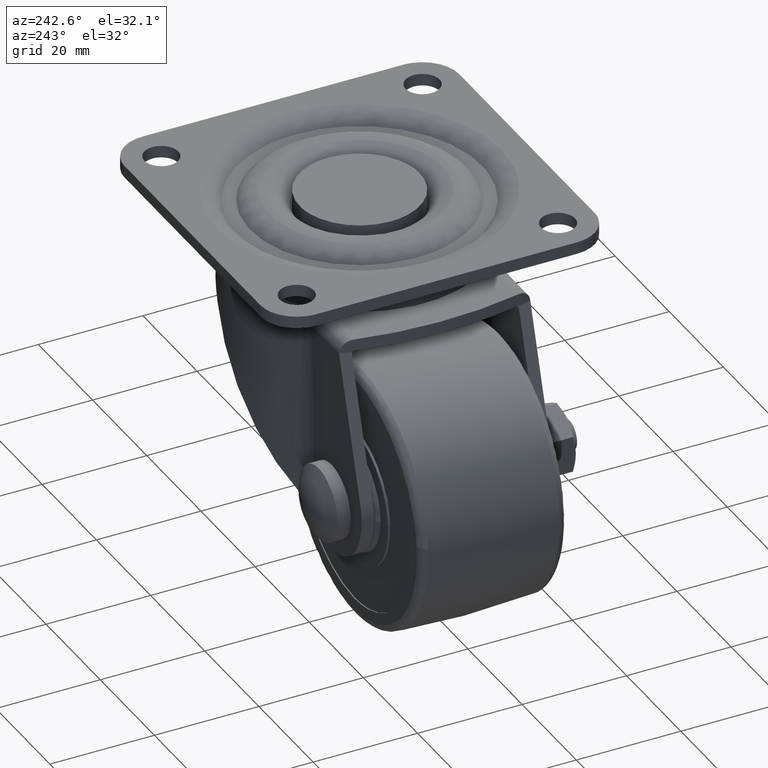
[diagram: clean part render]
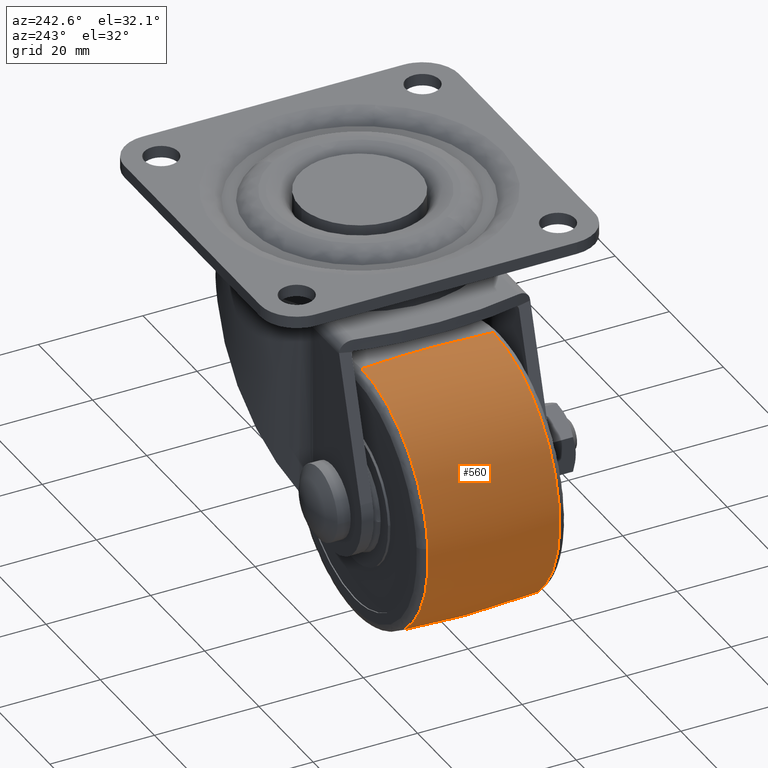
[diagram: same view with one face highlighted and labeled with its STEP entity id]
A machine part, auxiliary view. The second image highlights one B-rep face of the part: STEP entity #560.
In plain terms, the highlighted face is a freeform B-spline surface patch.
Its self-contained STEP definition (entity closure, byte-faithful):
#28=CARTESIAN_POINT('',(-49.571980243170607,-12.594463331568560,-44.236163722055117));
#29=VERTEX_POINT('',#28);
#30=CARTESIAN_POINT('',(-25.0,-12.594464770047679,-67.603054729019590));
#31=VERTEX_POINT('',#30);
#32=CARTESIAN_POINT('',(-49.571980243170614,-12.594463331568553,-44.236163722055124));
#33=CARTESIAN_POINT('',(-48.396441934166539,-12.594464802521561,-67.603054725162252));
#34=CARTESIAN_POINT('',(-25.0,-12.594464770047679,-67.603054729019590));
#42=(BOUNDED_CURVE()B_SPLINE_CURVE(2,(#32,#33,#34),.UNSPECIFIED.,.F.,.U.)B_SPLINE_CURVE_WITH_KNOTS((3,3),(0.758796049086961,1.0),.UNSPECIFIED.)CURVE()GEOMETRIC_REPRESENTATION_ITEM()RATIONAL_B_SPLINE_CURVE((0.980114736202029,0.717411993706232,1.0))REPRESENTATION_ITEM(''));
#43=EDGE_CURVE('',#29,#31,#42,.T.);
#148=CARTESIAN_POINT('',(-25.0,-12.594461604124231,-18.396945071218369));
#149=VERTEX_POINT('',#148);
#150=CARTESIAN_POINT('',(-25.0,-12.594461604124231,-18.396945071218369));
#151=CARTESIAN_POINT('',(-49.603055055624189,-12.594461635005484,-18.396945067550220));
#152=CARTESIAN_POINT('',(-49.603054978949807,-12.594463250441089,-42.999999892593500));
#153=CARTESIAN_POINT('',(-49.603054977022367,-12.594463291049973,-43.618472386193169));
#154=CARTESIAN_POINT('',(-49.571980243170614,-12.594463331568553,-44.236163722055124));
#162=(BOUNDED_CURVE()B_SPLINE_CURVE(2,(#150,#151,#152,#153,#154),.UNSPECIFIED.,.F.,.U.)B_SPLINE_CURVE_WITH_KNOTS((3,2,3),(0.500000000000000,0.750000000000000,0.758796049086961),.UNSPECIFIED.)CURVE()GEOMETRIC_REPRESENTATION_ITEM()RATIONAL_B_SPLINE_CURVE((1.0,0.707106781186548,1.0,0.989694787480316,0.980114736202029))REPRESENTATION_ITEM(''));
#163=EDGE_CURVE('',#149,#29,#162,.T.);
#436=CARTESIAN_POINT('',(-25.0,12.594464063943599,-67.603054773573049));
#437=VERTEX_POINT('',#436);
#438=CARTESIAN_POINT('',(-24.999999999999996,-12.594464770047670,-67.603054729019703));
#439=CARTESIAN_POINT('',(-25.000000000000004,-0.000000354457644,-68.397734643087702));
#440=CARTESIAN_POINT('',(-25.0,12.594464063943590,-67.603054773573149));
#448=(BOUNDED_CURVE()B_SPLINE_CURVE(2,(#438,#439,#440),.UNSPECIFIED.,.F.,.U.)B_SPLINE_CURVE_WITH_KNOTS((3,3),(0.438966742456626,0.561033254114762),.UNSPECIFIED.)CURVE()GEOMETRIC_REPRESENTATION_ITEM()RATIONAL_B_SPLINE_CURVE((0.938431264631589,0.936568735420726,0.938431264526959))REPRESENTATION_ITEM(''));
#449=EDGE_CURVE('',#31,#437,#448,.T.);
#466=CARTESIAN_POINT('',(-25.0,12.594464063865679,-18.396945226422019));
#467=VERTEX_POINT('',#466);
#483=CARTESIAN_POINT('',(-25.000000000000004,-12.594461604124227,-18.396945071218372));
#484=CARTESIAN_POINT('',(-25.000000000000004,0.000001234767210,-17.602265457193418));
#485=CARTESIAN_POINT('',(-24.999999999999996,12.594464063865679,-18.396945226421934));
#493=(BOUNDED_CURVE()B_SPLINE_CURVE(2,(#483,#484,#485),.UNSPECIFIED.,.F.,.U.)B_SPLINE_CURVE_WITH_KNOTS((3,3),(0.438966757829323,0.561033254114384),.UNSPECIFIED.)CURVE()GEOMETRIC_REPRESENTATION_ITEM()RATIONAL_B_SPLINE_CURVE((0.938431264162466,0.936568735655293,0.938431264526948))REPRESENTATION_ITEM(''));
#494=EDGE_CURVE('',#149,#467,#493,.T.);
#501=CARTESIAN_POINT('',(-25.0,-13.849766627691777,-18.480116368421854));
#502=CARTESIAN_POINT('',(-25.000000000000004,-5.311769E-014,-17.518728299472698));
#503=CARTESIAN_POINT('',(-25.0,13.849766627691670,-18.480116368421854));
#504=CARTESIAN_POINT('',(-49.519883631578161,-13.849766627691762,-18.480116368421847));
#505=CARTESIAN_POINT('',(-50.481271700527309,-4.158415E-014,-17.518728299472688));
#506=CARTESIAN_POINT('',(-49.519883631578161,13.849766627691679,-18.480116368421847));
#507=CARTESIAN_POINT('',(-49.519883631578161,-13.849766627691777,-43.0));
#508=CARTESIAN_POINT('',(-50.481271700527302,-5.311769E-014,-43.000000000000007));
#509=CARTESIAN_POINT('',(-49.519883631578161,13.849766627691670,-43.0));
#510=CARTESIAN_POINT('',(-49.519883631578161,-13.849766627691762,-67.519883631578139));
#511=CARTESIAN_POINT('',(-50.481271700527323,-4.158415E-014,-68.481271700527302));
#512=CARTESIAN_POINT('',(-49.519883631578161,13.849766627691679,-67.519883631578153));
#513=CARTESIAN_POINT('',(-25.0,-13.849766627691777,-67.519883631578139));
#514=CARTESIAN_POINT('',(-25.000000000000004,-5.311769E-014,-68.481271700527302));
#515=CARTESIAN_POINT('',(-25.0,13.849766627691670,-67.519883631578168));
#523=(BOUNDED_SURFACE()B_SPLINE_SURFACE(2,2,((#501,#504,#507,#510,#513),(#502,#505,#508,#511,#514),(#503,#506,#509,#512,#515)),.UNSPECIFIED.,.F.,.F.,.U.)B_SPLINE_SURFACE_WITH_KNOTS((3,3),(3,2,3),(0.0,27.732820708294849),(0.0,41.421356237309539,82.842712474619077),.UNSPECIFIED.)GEOMETRIC_REPRESENTATION_ITEM()RATIONAL_B_SPLINE_SURFACE(((0.938626625016267,0.663709251551245,0.938626625016267,0.663709251551245,0.938626625016267),(0.936373374983733,0.662115963173531,0.936373374983733,0.662115963173531,0.936373374983733),(0.938626625016267,0.663709251551245,0.938626625016267,0.663709251551245,0.938626625016267)))REPRESENTATION_ITEM('')SURFACE());
#524=ORIENTED_EDGE('',*,*,#449,.F.);
#525=ORIENTED_EDGE('',*,*,#43,.F.);
#526=ORIENTED_EDGE('',*,*,#163,.F.);
#527=ORIENTED_EDGE('',*,*,#494,.T.);
#528=CARTESIAN_POINT('',(-49.507929923650600,12.594464053109700,-40.838592183780683));
#529=VERTEX_POINT('',#528);
#530=CARTESIAN_POINT('',(-25.0,12.594464063865679,-18.396945226422019));
#531=CARTESIAN_POINT('',(-47.528752142484500,12.594464058469915,-18.396945234128143));
#532=CARTESIAN_POINT('',(-49.507929923650600,12.594464053109705,-40.838592183780676));
#540=(BOUNDED_CURVE()B_SPLINE_CURVE(2,(#530,#531,#532),.UNSPECIFIED.,.F.,.U.)B_SPLINE_CURVE_WITH_KNOTS((3,3),(0.500000000000000,0.734718454640185),.UNSPECIFIED.)CURVE()GEOMETRIC_REPRESENTATION_ITEM()RATIONAL_B_SPLINE_CURVE((1.0,0.725010225222067,0.966381850265966))REPRESENTATION_ITEM(''));
#541=EDGE_CURVE('',#467,#529,#540,.T.);
#542=ORIENTED_EDGE('',*,*,#541,.T.);
#543=CARTESIAN_POINT('',(-49.507929923650600,12.594464053109705,-40.838592183780676));
#544=CARTESIAN_POINT('',(-49.603054957302028,12.594464053328856,-41.917202840677078));
#545=CARTESIAN_POINT('',(-49.603054961147627,12.594464053568050,-43.000000014760083));
#546=CARTESIAN_POINT('',(-49.603055048526400,12.594464059002760,-67.603054780629478));
#547=CARTESIAN_POINT('',(-25.0,12.594464063943599,-67.603054773573049));
#555=(BOUNDED_CURVE()B_SPLINE_CURVE(2,(#543,#544,#545,#546,#547),.UNSPECIFIED.,.F.,.U.)B_SPLINE_CURVE_WITH_KNOTS((3,2,3),(0.734718454640185,0.750000000000000,1.0),.UNSPECIFIED.)CURVE()GEOMETRIC_REPRESENTATION_ITEM()RATIONAL_B_SPLINE_CURVE((0.966381850265966,0.982096555964480,1.0,0.707106781186548,1.0))REPRESENTATION_ITEM(''));
#556=EDGE_CURVE('',#529,#437,#555,.T.);
#557=ORIENTED_EDGE('',*,*,#556,.T.);
#558=EDGE_LOOP('',(#524,#525,#526,#527,#542,#557));
#559=FACE_OUTER_BOUND('',#558,.T.);
#560=ADVANCED_FACE('',(#559),#523,.T.);